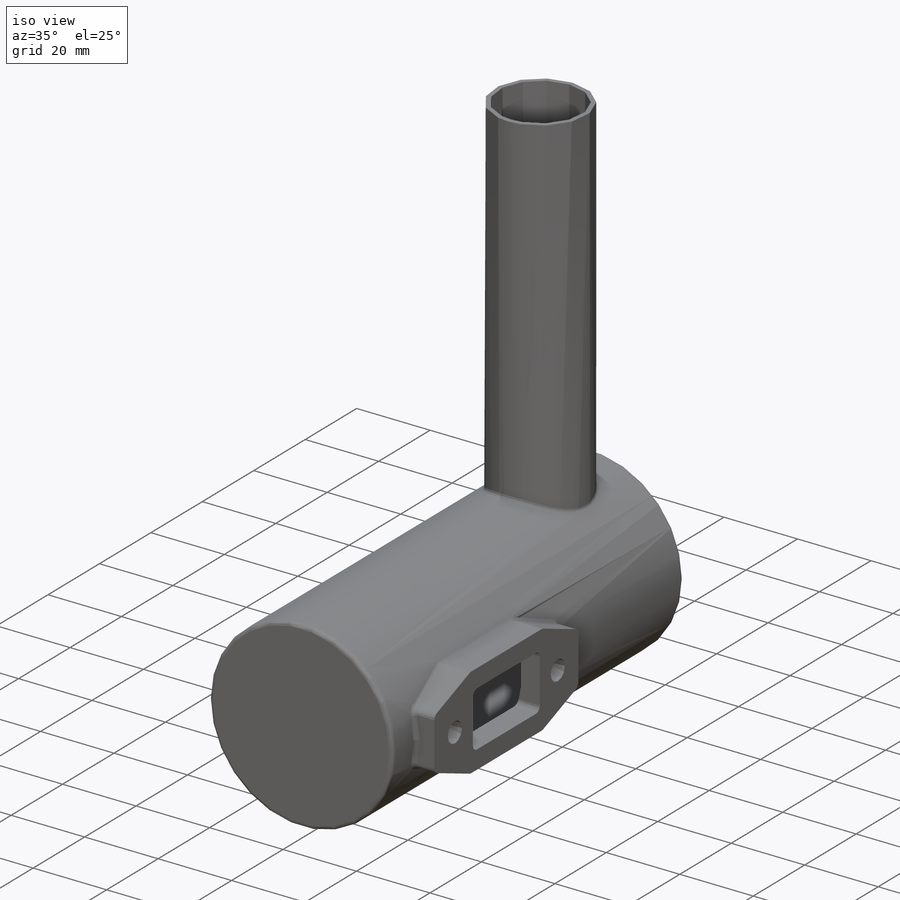
[diagram: iso view]
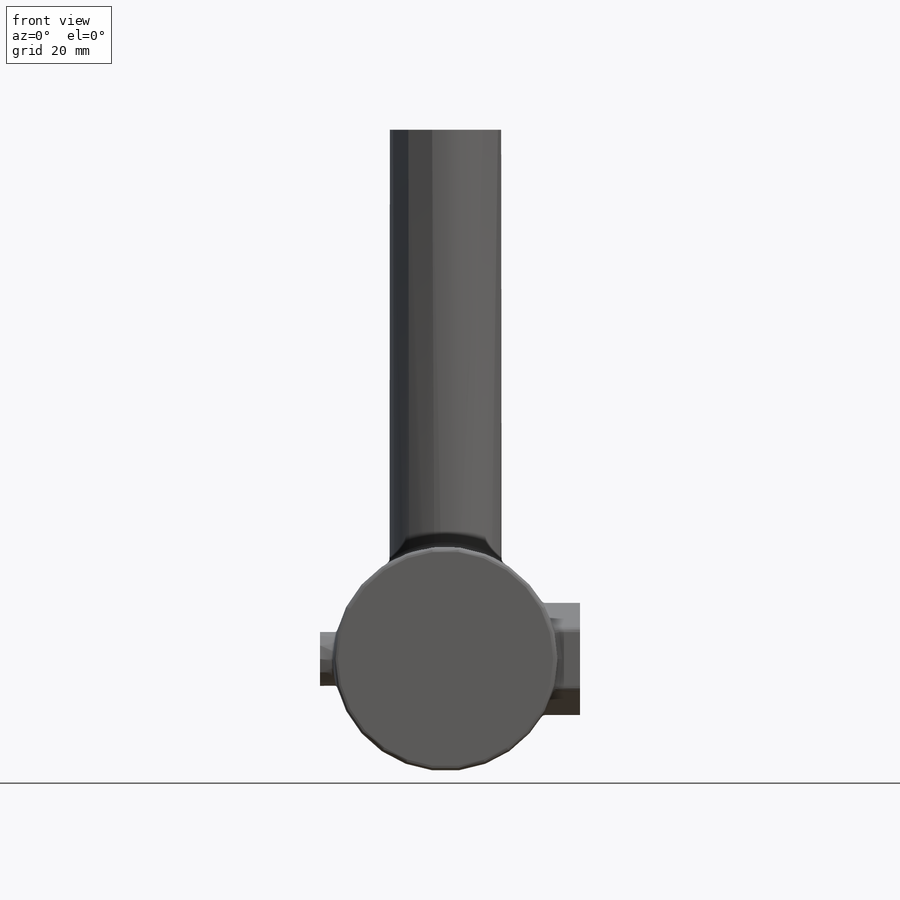
[diagram: front view]
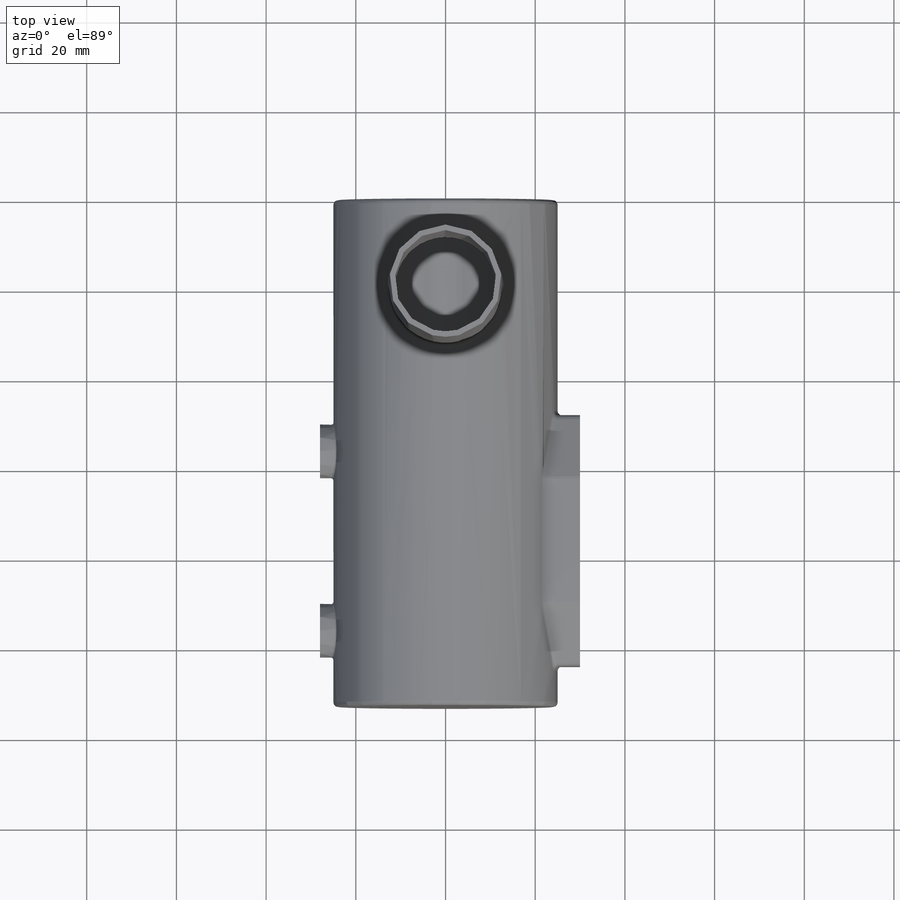
[diagram: top view]
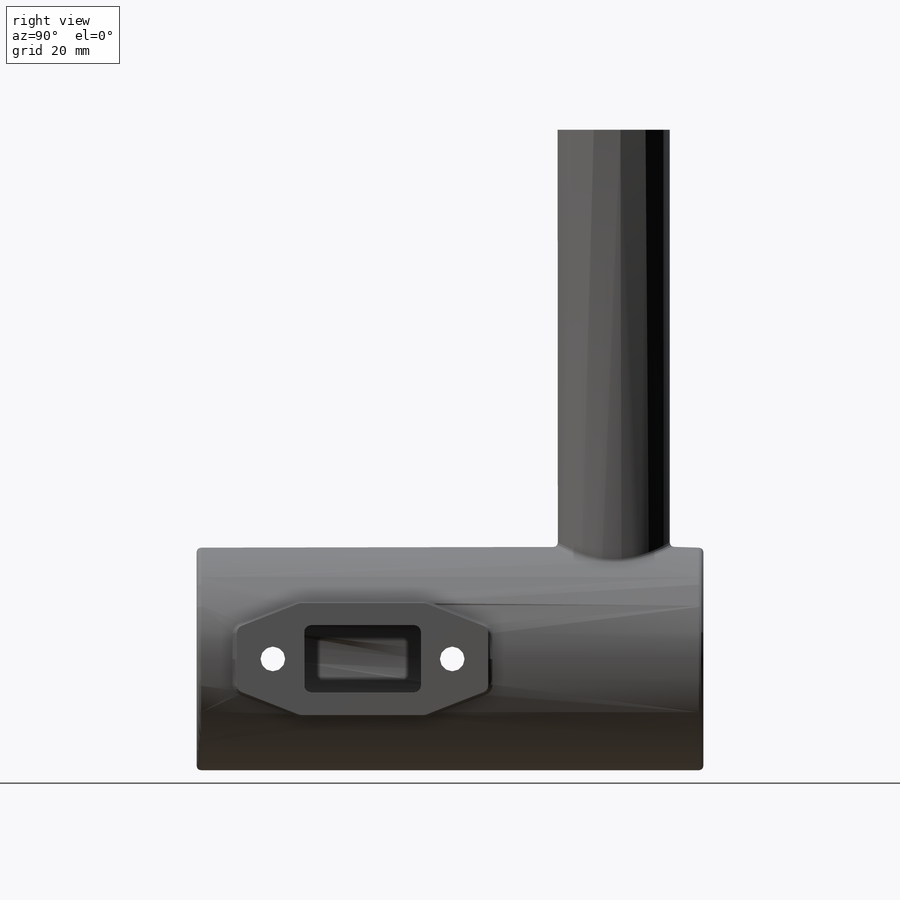
[diagram: right view]
SOLIDWORKS PART (.sldprt)
format: sldprt  version: not decoded by parser v0  size: 506,880 bytes
history: native  units: mm
features: sketch x4, extrude x4, plane x3, fillet x2, material x1, shell x1 (+9 scaffold rows collapsed)
feature tree (24):
  scaffold x9  (default folders/planes/origin — collapsed)
  material  "Д16Т ГОСТ 4784-97"
  plane  "Спереди"
  plane  "Сверху"
  plane  "Справа"
  sketch  "Эскиз1"  dims[D1=50.0mm]
  extrude  "Бобышка-Вытянуть1"  Depth=113mm
  sketch  "Эскиз2"  dims[D1=25.0mm D2=20.0mm]
  extrude  "Бобышка-Вытянуть2"  Depth=118mm
  sketch  "Эскиз3"  dims[c1.D7=5.5mm c1.D13=1.5mm c1.D14=1.5mm c1.D1=56.0mm c1.D2=25.0mm c1.D3=14.0mm c1.D4=14.0mm c1.D5=14.0mm c1.D6=9.0mm c1.D8=40.0mm c1.D9=8.0mm c1.D10=12.5mm c1.D11=~11.139876mm c1.D12=~22.052408mm c2.D11=15.0mm c2.D12=26.0mm]
  extrude  "Бобышка-Вытянуть3"  Depth=30mm
  sketch  "Эскиз4"  dims[D1=12.0mm D2=9.5mm]
  extrude  "Бобышка-Вытянуть4"  Depth=28mm
  fillet  "Скругление1"  Radius=1mm
  fillet  "Скругление2"  Radius=0.5mm
  shell  "Оболочка1"  Thickness=1.2mm
decode coverage: 11 of 11 modeling features carry decoded parameters
note: ~ marks probable driven/reference dimensions
note: suppression state not decoded; provenance and decode notes live in map.json
